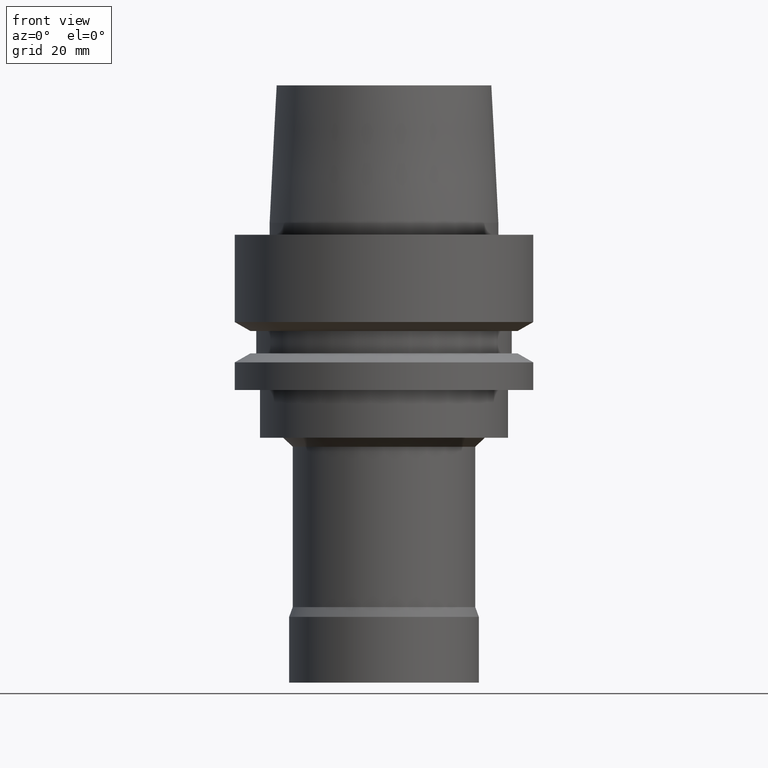
[diagram: clean part render]
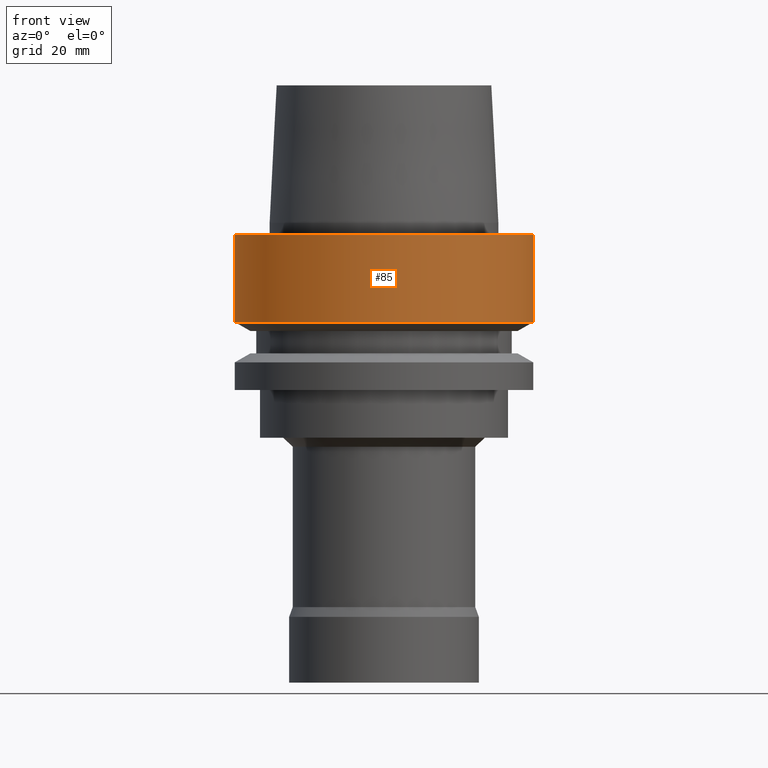
[diagram: same view with one face highlighted and labeled with its STEP entity id]
A machine part, front view. The second image highlights one B-rep face of the part: STEP entity #85.
In plain terms, the highlighted cylindrical surface (bore or boss wall) has radius 25 mm, axis along (-0, -0, 1).
Its self-contained STEP definition (entity closure, byte-faithful):
#85=ADVANCED_FACE('',(#123,#124),#125,.T.);
#123=FACE_BOUND('',#178,.T.);
#124=FACE_BOUND('',#179,.T.);
#125=CYLINDRICAL_SURFACE('',#180,25.0);
#178=EDGE_LOOP('',(#253));
#179=EDGE_LOOP('',(#254));
#180=AXIS2_PLACEMENT_3D('',#255,#256,#257);
#253=ORIENTED_EDGE('',*,*,#308,.F.);
#254=ORIENTED_EDGE('',*,*,#307,.T.);
#255=CARTESIAN_POINT('',(4.47684973986342E-016,8.95369947972685E-016,-7.311250465));
#256=DIRECTION('',(-6.12323399573677E-017,-1.22464679914735E-016,1.0));
#257=DIRECTION('',(-1.23259516440783E-032,1.0,1.22464679914735E-016));
#307=EDGE_CURVE('',#334,#334,#335,.T.);
#308=EDGE_CURVE('',#336,#336,#337,.T.);
#334=VERTEX_POINT('',#370);
#335=CIRCLE('',#371,25.0);
#336=VERTEX_POINT('',#372);
#337=CIRCLE('',#373,25.0);
#370=CARTESIAN_POINT('',(-3.08148791101958E-031,25.0,3.06161699786838E-015));
#371=AXIS2_PLACEMENT_3D('',#415,#416,#417);
#372=CARTESIAN_POINT('',(8.95369947972684E-016,25.0,-14.62250093));
#373=AXIS2_PLACEMENT_3D('',#418,#419,#420);
#415=CARTESIAN_POINT('',(0.0,0.0,0.0));
#416=DIRECTION('',(6.12323399573677E-017,1.22464679914735E-016,-1.0));
#417=DIRECTION('',(-1.23259516440783E-032,1.0,1.22464679914735E-016));
#418=CARTESIAN_POINT('',(8.95369947972685E-016,1.79073989594537E-015,-14.62250093));
#419=DIRECTION('',(6.12323399573677E-017,1.22464679914735E-016,-1.0));
#420=DIRECTION('',(-1.23259516440783E-032,1.0,1.22464679914735E-016));